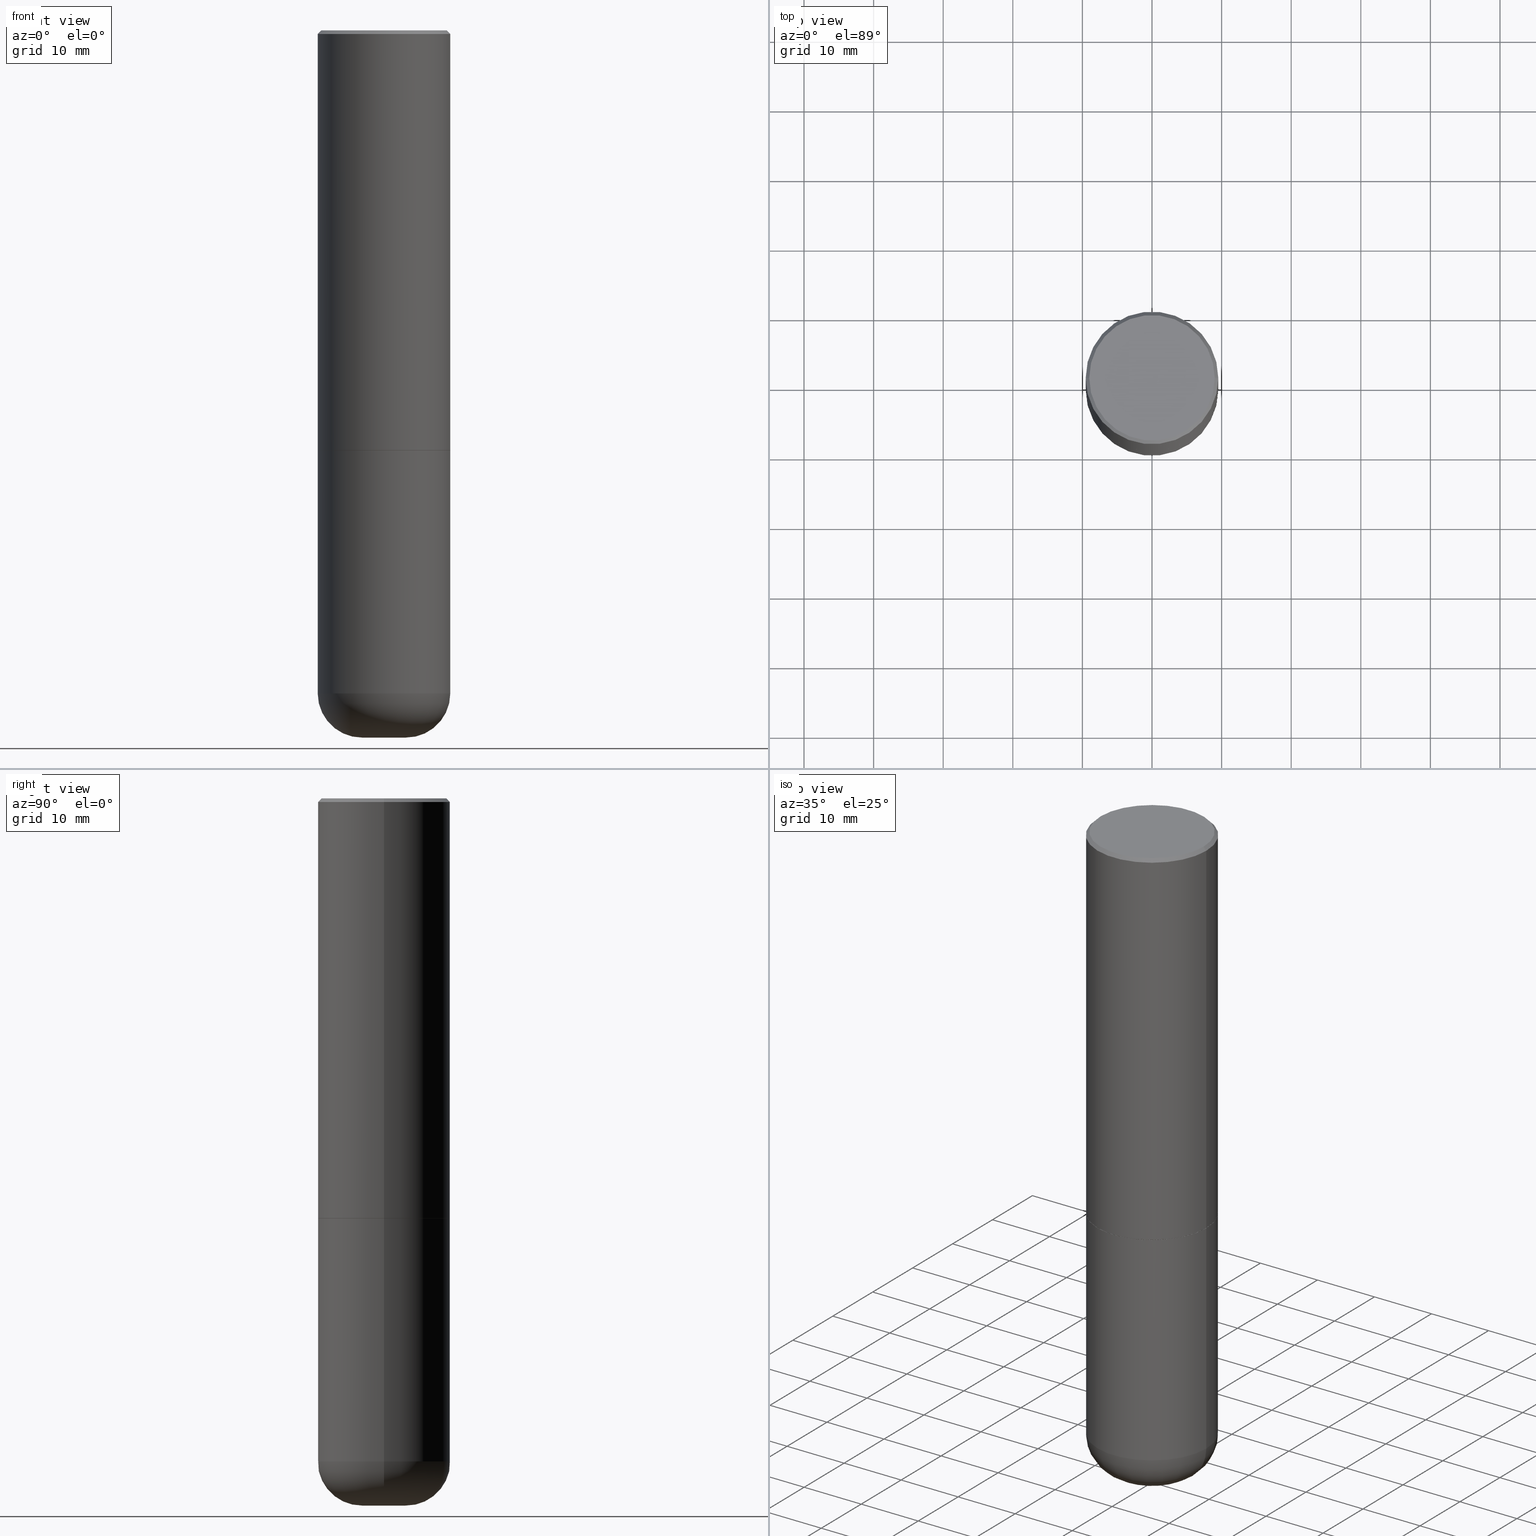
[diagram: canonical four-view strip — front | top / right | iso, engineering-drawing reading convention]
A machine part, canonical four-view strip (front | top / right | iso — engineering-drawing reading convention). The complete STEP part file that produces these views, byte-faithful:
ISO-10303-21;
HEADER;
FILE_DESCRIPTION (( 'STEP AP203' ),
    '1' );
FILE_NAME ('35724.STEP',
    '2022-11-02T20:53:01',
    ( '' ),
    ( '' ),
    'SwSTEP 2.0',
    'SolidWorks 2022',
    '' );
FILE_SCHEMA (( 'CONFIG_CONTROL_DESIGN' ));
ENDSEC;

DATA;
#1 = DIRECTION ( 'NONE',  ( 1.000000000000000000, -6.982962677686266711E-15, 4.876176775795935793E-29 ) ) ;
#2 = EDGE_LOOP ( 'NONE', ( #340, #156, #421, #313 ) ) ;
#3 = AXIS2_PLACEMENT_3D ( 'NONE', #293, #71, #446 ) ;
#4 = CONICAL_SURFACE ( 'NONE', #123, 0.3739999999999999991, 0.7853981633972775267 ) ;
#5 = DIRECTION ( 'NONE',  ( 1.000000000000000000, -6.982962677686257244E-15, 0.000000000000000000 ) ) ;
#6 = PRODUCT ( '35724', '35724', '', ( #248 ) ) ;
#7 = EDGE_LOOP ( 'NONE', ( #189, #295, #72, #87 ) ) ;
#8 = COORDINATED_UNIVERSAL_TIME_OFFSET ( 5, 0, .BEHIND. ) ;
#9 = ADVANCED_FACE ( 'NONE', ( #316 ), #466, .F. ) ;
#10 = DIRECTION ( 'NONE',  ( 1.000000000000000000, -6.982962677686257244E-15, 0.000000000000000000 ) ) ;
#11 = ORIENTED_EDGE ( 'NONE', *, *, #179, .F. ) ;
#12 = DIRECTION ( 'NONE',  ( 0.7071067811864267805, -2.468850131080992517E-15, 0.7071067811866682540 ) ) ;
#13 = DIRECTION ( 'NONE',  ( 1.000000000000000000, -6.982962677686266711E-15, 0.000000000000000000 ) ) ;
#14 = AXIS2_PLACEMENT_3D ( 'NONE', #361, #250, #480 ) ;
#15 = VECTOR ( 'NONE', #353, 39.37007874015748854 ) ;
#16 = CARTESIAN_POINT ( 'NONE',  ( 0.08282086612540810744, -1.453289902993237186E-14, -3.999650947105539256 ) ) ;
#17 = APPROVAL_DATE_TIME ( #206, #196 ) ;
#18 = DIRECTION ( 'NONE',  ( 0.7071067811865469066, -7.319954787623252890E-15, -0.7071067811865479058 ) ) ;
#19 = CARTESIAN_POINT ( 'NONE',  ( 0.000000000000000000, 0.000000000000000000, 0.000000000000000000 ) ) ;
#20 = CARTESIAN_POINT ( 'NONE',  ( -0.08282086612540810744, -1.338637162661792959E-14, -3.999650947105539256 ) ) ;
#21 = AXIS2_PLACEMENT_3D ( 'NONE', #255, #33, #135 ) ;
#22 = EDGE_CURVE ( 'NONE', #412, #43, #181, .T. ) ;
#23 = PERSON_AND_ORGANIZATION_ROLE ( 'creator' ) ;
#24 = APPROVAL_PERSON_ORGANIZATION ( #133, #205, #441 ) ;
#25 = LINE ( 'NONE', #167, #108 ) ;
#26 = EDGE_CURVE ( 'NONE', #414, #234, #168, .T. ) ;
#27 = PRODUCT_RELATED_PRODUCT_CATEGORY ( 'detail', '', ( #6 ) ) ;
#28 = DIRECTION ( 'NONE',  ( -2.445468806185136597E-29, 3.491481338843145583E-15, 1.000000000000000000 ) ) ;
#29 = UNCERTAINTY_MEASURE_WITH_UNIT (LENGTH_MEASURE( 1.000000000000000082E-05 ), #172, 'distance_accuracy_value', 'NONE');
#30 = LINE ( 'NONE', #175, #457 ) ;
#31 = CIRCLE ( 'NONE', #329, 0.3739999999999999991 ) ;
#32 = ADVANCED_FACE ( 'NONE', ( #125 ), #77, .F. ) ;
#33 = DIRECTION ( 'NONE',  ( -2.445468806185136597E-29, 3.491481338843145583E-15, 1.000000000000000000 ) ) ;
#34 = CARTESIAN_POINT ( 'NONE',  ( 9.781875224740545266E-29, -1.396592535537258075E-14, -3.999999999999999556 ) ) ;
#35 = ORIENTED_EDGE ( 'NONE', *, *, #472, .T. ) ;
#36 = VECTOR ( 'NONE', #252, 39.37007874015748143 ) ;
#37 = ORIENTED_EDGE ( 'NONE', *, *, #344, .F. ) ;
#38 = EDGE_LOOP ( 'NONE', ( #148, #105 ) ) ;
#39 = CARTESIAN_POINT ( 'NONE',  ( 0.000000000000000000, 0.000000000000000000, 0.000000000000000000 ) ) ;
#40 = VERTEX_POINT ( 'NONE', #445 ) ;
#41 = ADVANCED_FACE ( 'NONE', ( #373 ), #274, .T. ) ;
#42 = DIRECTION ( 'NONE',  ( -2.445468806185136597E-29, 3.491481338843145583E-15, 1.000000000000000000 ) ) ;
#43 = VERTEX_POINT ( 'NONE', #73 ) ;
#44 = AXIS2_PLACEMENT_3D ( 'NONE', #150, #184, #10 ) ;
#45 = AXIS2_PLACEMENT_3D ( 'NONE', #474, #42, #195 ) ;
#46 = CARTESIAN_POINT ( 'NONE',  ( 0.1228183661254082099, -1.480852051026551656E-14, -3.999999999999999556 ) ) ;
#47 = ORIENTED_EDGE ( 'NONE', *, *, #463, .F. ) ;
#48 = CC_DESIGN_PERSON_AND_ORGANIZATION_ASSIGNMENT ( #166, #310, ( #233 ) ) ;
#49 = CARTESIAN_POINT ( 'NONE',  ( 0.3739999999999999991, -1.090389622120713570E-14, -2.375000000000000000 ) ) ;
#50 = ORIENTED_EDGE ( 'NONE', *, *, #311, .F. ) ;
#51 =( LENGTH_UNIT ( ) NAMED_UNIT ( * ) SI_UNIT ( $, .METRE. ) );
#52 = DIRECTION ( 'NONE',  ( -0.7071067811864267805, 7.493145998869918709E-15, 0.7071067811866682540 ) ) ;
#53 = TOROIDAL_SURFACE ( 'NONE', #300, 0.1250000000000003053, 0.2500000000000001110 ) ;
#54 = PERSON_AND_ORGANIZATION ( #164, #458 ) ;
#55 = EDGE_CURVE ( 'NONE', #424, #461, #31, .T. ) ;
#56 = DIRECTION ( 'NONE',  ( -2.445468806185136877E-29, 3.491481338843145188E-15, 1.000000000000000000 ) ) ;
#57 = PERSON_AND_ORGANIZATION ( #164, #458 ) ;
#58 = DIRECTION ( 'NONE',  ( -0.9999619230641714207, 6.952228252019235511E-15, -0.008726535498355246501 ) ) ;
#59 = PERSON_AND_ORGANIZATION ( #164, #458 ) ;
#60 = DATE_AND_TIME ( #286, #257 ) ;
#61 = DIRECTION ( 'NONE',  ( -1.000000000000000000, 7.105427357601001859E-15, 0.000000000000000000 ) ) ;
#62 = CONICAL_SURFACE ( 'NONE', #3, 0.08282086612540810744, 1.535889741755012805 ) ;
#63 = COORDINATED_UNIVERSAL_TIME_OFFSET ( 5, 0, .BEHIND. ) ;
#64 = AXIS2_PLACEMENT_3D ( 'NONE', #388, #308, #460 ) ;
#65 = DIRECTION ( 'NONE',  ( -2.445468806185136597E-29, 3.491481338843145583E-15, 1.000000000000000000 ) ) ;
#66 = CARTESIAN_POINT ( 'NONE',  ( 0.08282086612540810744, -1.453289902993237186E-14, -3.999650947105539256 ) ) ;
#67 = CARTESIAN_POINT ( 'NONE',  ( 9.170531302183962062E-29, -1.309308825688951538E-14, -3.750009519233956645 ) ) ;
#68 = AXIS2_PLACEMENT_3D ( 'NONE', #202, #65, #365 ) ;
#69 = AXIS2_PLACEMENT_3D ( 'NONE', #79, #84, #1 ) ;
#70 = EDGE_LOOP ( 'NONE', ( #183, #333, #220, #269 ) ) ;
#71 = DIRECTION ( 'NONE',  ( 2.445468806185136597E-29, -3.491481338843145583E-15, -1.000000000000000000 ) ) ;
#72 = ORIENTED_EDGE ( 'NONE', *, *, #26, .F. ) ;
#73 = CARTESIAN_POINT ( 'NONE',  ( -0.3549999999999989275, 2.513866563967048758E-15, 4.268512490082953109E-18 ) ) ;
#74 = EDGE_CURVE ( 'NONE', #261, #237, #331, .T. ) ;
#75 = ORIENTED_EDGE ( 'NONE', *, *, #74, .T. ) ;
#76 = EDGE_CURVE ( 'NONE', #309, #262, #468, .T. ) ;
#77 = CONICAL_SURFACE ( 'NONE', #449, 0.1228183661254082099, 1.562069680534943661 ) ;
#78 = CARTESIAN_POINT ( 'NONE',  ( 5.805542945883513814E-29, -8.288776698413627111E-15, -2.373999999999999666 ) ) ;
#79 = CARTESIAN_POINT ( 'NONE',  ( 0.000000000000000000, 0.000000000000000000, 0.000000000000000000 ) ) ;
#80 = EDGE_LOOP ( 'NONE', ( #225, #419, #182, #374 ) ) ;
#81 = LINE ( 'NONE', #46, #15 ) ;
#82 = ORIENTED_EDGE ( 'NONE', *, *, #459, .F. ) ;
#83 = AXIS2_PLACEMENT_3D ( 'NONE', #173, #327, #483 ) ;
#84 = DIRECTION ( 'NONE',  ( -2.445468806185136597E-29, 3.491481338843145583E-15, 1.000000000000000000 ) ) ;
#85 = DIRECTION ( 'NONE',  ( 1.000000000000000000, -6.982962677686266711E-15, 4.876231632512002757E-29 ) ) ;
#86 = CARTESIAN_POINT ( 'NONE',  ( -0.3739999999999999991, -5.629539893661473027E-15, -2.375000000000000000 ) ) ;
#87 = ORIENTED_EDGE ( 'NONE', *, *, #235, .F. ) ;
#88 = CARTESIAN_POINT ( 'NONE',  ( -0.3749999999999991673, 2.548781377355480407E-15, -0.02000000000000022246 ) ) ;
#89 = COORDINATED_UNIVERSAL_TIME_OFFSET ( 5, 0, .BEHIND. ) ;
#90 = AXIS2_PLACEMENT_3D ( 'NONE', #120, #427, #471 ) ;
#91 = DIRECTION ( 'NONE',  ( 2.438088387897960049E-29, -3.491481338843145188E-15, -1.000000000000000000 ) ) ;
#92 = CIRCLE ( 'NONE', #101, 0.3739999999999999991 ) ;
#93 = APPROVAL_PERSON_ORGANIZATION ( #383, #349, #305 ) ;
#94 = PERSON_AND_ORGANIZATION_ROLE ( 'design_owner' ) ;
#95 = CARTESIAN_POINT ( 'NONE',  ( 0.1250000000000003053, -1.396595859160030030E-14, -3.750009519233956645 ) ) ;
#96 = CALENDAR_DATE ( 2022, 2, 11 ) ;
#97 = APPROVAL_DATE_TIME ( #226, #349 ) ;
#98 = CARTESIAN_POINT ( 'NONE',  ( 0.3749999999999991673, -2.642516375941182112E-15, -0.02000000000000022246 ) ) ;
#99 = FACE_OUTER_BOUND ( 'NONE', #429, .T. ) ;
#100 = EDGE_CURVE ( 'NONE', #343, #301, #355, .T. ) ;
#101 = AXIS2_PLACEMENT_3D ( 'NONE', #218, #199, #284 ) ;
#102 = CARTESIAN_POINT ( 'NONE',  ( 4.890937612370327459E-31, -6.982962677686369262E-17, -0.02000000000000022246 ) ) ;
#103 = EDGE_CURVE ( 'NONE', #301, #343, #416, .T. ) ;
#104 = DIRECTION ( 'NONE',  ( -0.7071067811865469066, 2.468850131082251144E-15, -0.7071067811865479058 ) ) ;
#105 = ORIENTED_EDGE ( 'NONE', *, *, #22, .T. ) ;
#106 = DIRECTION ( 'NONE',  ( -2.445468806185136597E-29, 3.491481338843145583E-15, 1.000000000000000000 ) ) ;
#107 = VECTOR ( 'NONE', #452, 39.37007874015748143 ) ;
#108 = VECTOR ( 'NONE', #52, 39.37007874015748143 ) ;
#109 = ORIENTED_EDGE ( 'NONE', *, *, #268, .F. ) ;
#110 = DIRECTION ( 'NONE',  ( -2.445468806185136597E-29, 3.491481338843145583E-15, 1.000000000000000000 ) ) ;
#111 = EDGE_LOOP ( 'NONE', ( #160, #464 ) ) ;
#112 = ORIENTED_EDGE ( 'NONE', *, *, #154, .F. ) ;
#113 = EDGE_CURVE ( 'NONE', #234, #414, #136, .T. ) ;
#114 = EDGE_LOOP ( 'NONE', ( #492, #351 ) ) ;
#115 = DIRECTION ( 'NONE',  ( -2.445468806185136597E-29, 3.491481338843145583E-15, 1.000000000000000000 ) ) ;
#116 = ORIENTED_EDGE ( 'NONE', *, *, #235, .T. ) ;
#117 = DIRECTION ( 'NONE',  ( 1.000000000000000000, -6.982962677686265133E-15, 4.876176775795935793E-29 ) ) ;
#118 = ORIENTED_EDGE ( 'NONE', *, *, #302, .F. ) ;
#119 = DIRECTION ( 'NONE',  ( -2.445468806185136597E-29, 3.491481338843145583E-15, 1.000000000000000000 ) ) ;
#120 = CARTESIAN_POINT ( 'NONE',  ( 5.807988414689700538E-29, -8.292268179752471696E-15, -2.375000000000000000 ) ) ;
#121 = PERSON_AND_ORGANIZATION_ROLE ( 'classification_officer' ) ;
#122 = AXIS2_PLACEMENT_3D ( 'NONE', #346, #378, #465 ) ;
#123 = AXIS2_PLACEMENT_3D ( 'NONE', #193, #230, #385 ) ;
#124 = CARTESIAN_POINT ( 'NONE',  ( -0.3750000000000000555, -1.514767903494864183E-15, -2.373999999999999666 ) ) ;
#125 = FACE_OUTER_BOUND ( 'NONE', #266, .T. ) ;
#126 = CARTESIAN_POINT ( 'NONE',  ( 0.3749999999999999445, -2.618611004132349622E-15, 1.828566290923475642E-29 ) ) ;
#127 = CARTESIAN_POINT ( 'NONE',  ( -0.3749999999999995559, 2.664535259100372542E-15, -1.844600658845587356E-29 ) ) ;
#128 = LENGTH_MEASURE_WITH_UNIT ( LENGTH_MEASURE( 0.02539999999999999897 ), #51 );
#129 = FACE_OUTER_BOUND ( 'NONE', #2, .T. ) ;
#130 = AXIS2_PLACEMENT_3D ( 'NONE', #197, #354, #13 ) ;
#131 = SECURITY_CLASSIFICATION ( '', '', #398 ) ;
#132 = CARTESIAN_POINT ( 'NONE',  ( 0.3749999999999999445, -1.571169926102186224E-14, -3.750009519233956645 ) ) ;
#133 = PERSON_AND_ORGANIZATION ( #164, #458 ) ;
#134 = CARTESIAN_POINT ( 'NONE',  ( 9.170531302183962062E-29, -1.309308825688951538E-14, -3.750009519233956645 ) ) ;
#135 = DIRECTION ( 'NONE',  ( 1.000000000000000000, -6.982962677686266711E-15, 0.000000000000000000 ) ) ;
#136 = CIRCLE ( 'NONE', #21, 0.3750000000000000555 ) ;
#137 = DIRECTION ( 'NONE',  ( 0.9993908270190957621, -6.978169709227531233E-15, -0.03489949670249818670 ) ) ;
#138 = ORIENTED_EDGE ( 'NONE', *, *, #326, .F. ) ;
#139 = DIRECTION ( 'NONE',  ( 1.000000000000000000, -6.982962677686266711E-15, 0.000000000000000000 ) ) ;
#140 = EDGE_CURVE ( 'NONE', #43, #343, #30, .T. ) ;
#141 = ORIENTED_EDGE ( 'NONE', *, *, #179, .T. ) ;
#142 = DIRECTION ( 'NONE',  ( -2.445468806185136597E-29, 3.491481338843145583E-15, 1.000000000000000000 ) ) ;
#143 = AXIS2_PLACEMENT_3D ( 'NONE', #209, #91, #322 ) ;
#144 = AXIS2_PLACEMENT_3D ( 'NONE', #390, #462, #423 ) ;
#145 = ADVANCED_FACE ( 'NONE', ( #334 ), #62, .F. ) ;
#146 = ORIENTED_EDGE ( 'NONE', *, *, #417, .F. ) ;
#147 = ORIENTED_EDGE ( 'NONE', *, *, #192, .T. ) ;
#148 = ORIENTED_EDGE ( 'NONE', *, *, #326, .T. ) ;
#149 = ADVANCED_FACE ( 'NONE', ( #176 ), #263, .F. ) ;
#150 = CARTESIAN_POINT ( 'NONE',  ( 9.781021626775434250E-29, -1.396470664370530441E-14, -3.999650947105539256 ) ) ;
#151 = AXIS2_PLACEMENT_3D ( 'NONE', #134, #245, #430 ) ;
#152 = ORIENTED_EDGE ( 'NONE', *, *, #76, .T. ) ;
#153 = PERSON_AND_ORGANIZATION ( #164, #458 ) ;
#154 = EDGE_CURVE ( 'NONE', #40, #234, #447, .T. ) ;
#155 = DIRECTION ( 'NONE',  ( 2.445468806185136597E-29, -3.491481338843145583E-15, -1.000000000000000000 ) ) ;
#156 = ORIENTED_EDGE ( 'NONE', *, *, #251, .T. ) ;
#157 = CARTESIAN_POINT ( 'NONE',  ( 4.890937612370327459E-31, -6.982962677686369262E-17, -0.02000000000000022246 ) ) ;
#158 = ORIENTED_EDGE ( 'NONE', *, *, #406, .T. ) ;
#159 = LINE ( 'NONE', #187, #222 ) ;
#160 = ORIENTED_EDGE ( 'NONE', *, *, #201, .F. ) ;
#161 = CIRCLE ( 'NONE', #151, 0.3749999999999999445 ) ;
#162 = CC_DESIGN_PERSON_AND_ORGANIZATION_ASSIGNMENT ( #54, #358, ( #233 ) ) ;
#163 = CARTESIAN_POINT ( 'NONE',  ( 9.781021626775434250E-29, -1.396470664370530441E-14, -3.999650947105539256 ) ) ;
#164 = PERSON ( 'UNSPECIFIED', 'UNSPECIFIED', 'UNSPECIFIED', ('UNSPECIFIED'), ('UNSPECIFIED'), ('UNSPECIFIED') ) ;
#165 = DIRECTION ( 'NONE',  ( 1.000000000000000000, -6.982962677686268288E-15, 0.000000000000000000 ) ) ;
#166 = PERSON_AND_ORGANIZATION ( #164, #458 ) ;
#167 = CARTESIAN_POINT ( 'NONE',  ( -0.3739999999999999991, -5.634838348009696218E-15, -2.375000000000000000 ) ) ;
#168 = CIRCLE ( 'NONE', #130, 0.3750000000000000555 ) ;
#169 = LINE ( 'NONE', #476, #345 ) ;
#170 = AXIS2_PLACEMENT_3D ( 'NONE', #19, #477, #203 ) ;
#171 = AXIS2_PLACEMENT_3D ( 'NONE', #78, #314, #236 ) ;
#172 =( CONVERSION_BASED_UNIT ( 'INCH', #128 ) LENGTH_UNIT ( ) NAMED_UNIT ( #415 ) );
#173 = CARTESIAN_POINT ( 'NONE',  ( 0.000000000000000000, 0.000000000000000000, 0.000000000000000000 ) ) ;
#174 = DIRECTION ( 'NONE',  ( 7.105427357601001859E-15, 1.000000000000000000, -3.491481338843145583E-15 ) ) ;
#175 = CARTESIAN_POINT ( 'NONE',  ( -0.3749999999999991673, 2.548781377355480407E-15, -0.02000000000000022246 ) ) ;
#176 = FACE_OUTER_BOUND ( 'NONE', #70, .T. ) ;
#177 = EDGE_LOOP ( 'NONE', ( #112, #387, #116, #335 ) ) ;
#178 = CARTESIAN_POINT ( 'NONE',  ( 4.890937612370327459E-31, -6.982962677686369262E-17, -0.02000000000000022246 ) ) ;
#179 = EDGE_CURVE ( 'NONE', #262, #309, #307, .T. ) ;
#180 = ORIENTED_EDGE ( 'NONE', *, *, #22, .F. ) ;
#181 = CIRCLE ( 'NONE', #318, 0.3549999999999989275 ) ;
#182 = ORIENTED_EDGE ( 'NONE', *, *, #103, .F. ) ;
#183 = ORIENTED_EDGE ( 'NONE', *, *, #472, .F. ) ;
#184 = DIRECTION ( 'NONE',  ( -2.445468806185136597E-29, 3.491481338843145583E-15, 1.000000000000000000 ) ) ;
#185 = ORIENTED_EDGE ( 'NONE', *, *, #384, .T. ) ;
#186 = SHAPE_DEFINITION_REPRESENTATION ( #277, #404 ) ;
#187 = CARTESIAN_POINT ( 'NONE',  ( -0.08282086612540810744, -1.338637162661792959E-14, -3.999650947105539256 ) ) ;
#188 = AXIS2_PLACEMENT_3D ( 'NONE', #39, #115, #117 ) ;
#189 = ORIENTED_EDGE ( 'NONE', *, *, #268, .T. ) ;
#190 = APPROVAL_STATUS ( 'not_yet_approved' ) ;
#191 = LOCAL_TIME ( 16, 53, 1.000000000000000000, #229 ) ;
#192 = EDGE_CURVE ( 'NONE', #454, #301, #260, .T. ) ;
#193 = CARTESIAN_POINT ( 'NONE',  ( 5.807988414689700538E-29, -8.292268179752471696E-15, -2.375000000000000000 ) ) ;
#194 = EDGE_LOOP ( 'NONE', ( #223, #303, #146 ) ) ;
#195 = DIRECTION ( 'NONE',  ( 1.000000000000000000, -6.982962677686263555E-15, 0.000000000000000000 ) ) ;
#196 = APPROVAL ( #244, 'UNSPECIFIED' ) ;
#197 = CARTESIAN_POINT ( 'NONE',  ( 5.807988414689699417E-29, -8.292268179752470118E-15, -2.375000000000000000 ) ) ;
#198 = CIRCLE ( 'NONE', #444, 0.2500000000000000555 ) ;
#199 = DIRECTION ( 'NONE',  ( -2.445468806185136597E-29, 3.491481338843145583E-15, 1.000000000000000000 ) ) ;
#200 = DATE_TIME_ROLE ( 'creation_date' ) ;
#201 = EDGE_CURVE ( 'NONE', #461, #424, #92, .T. ) ;
#202 = CARTESIAN_POINT ( 'NONE',  ( -1.043851414335219820E-46, 1.490343170380447200E-32, 4.268512490100411279E-18 ) ) ;
#203 = DIRECTION ( 'NONE',  ( 1.000000000000000000, 0.000000000000000000, 0.000000000000000000 ) ) ;
#204 = PLANE ( 'NONE',  #14 ) ;
#205 = APPROVAL ( #360, 'UNSPECIFIED' ) ;
#206 = DATE_AND_TIME ( #96, #214 ) ;
#207 = CYLINDRICAL_SURFACE ( 'NONE', #83, 0.3749999999999999445 ) ;
#208 = EDGE_CURVE ( 'NONE', #309, #375, #198, .T. ) ;
#209 = CARTESIAN_POINT ( 'NONE',  ( 2.478951750578617109E-15, 0.3549999999999989275, -1.237341619044262680E-15 ) ) ;
#210 = CC_DESIGN_PERSON_AND_ORGANIZATION_ASSIGNMENT ( #281, #94, ( #6 ) ) ;
#211 = DIRECTION ( 'NONE',  ( -2.445468806185136597E-29, 3.491481338843145583E-15, 1.000000000000000000 ) ) ;
#212 = CARTESIAN_POINT ( 'NONE',  ( 9.781875224740545266E-29, -1.396592535537258075E-14, -3.999999999999999556 ) ) ;
#213 = VECTOR ( 'NONE', #56, 39.37007874015748143 ) ;
#214 = LOCAL_TIME ( 16, 53, 1.000000000000000000, #438 ) ;
#215 = VERTEX_POINT ( 'NONE', #20 ) ;
#216 = CARTESIAN_POINT ( 'NONE',  ( 9.781875224740545266E-29, -1.396592535537258075E-14, -3.999999999999999556 ) ) ;
#217 = EDGE_LOOP ( 'NONE', ( #47, #75, #405 ) ) ;
#218 = CARTESIAN_POINT ( 'NONE',  ( 5.807988414689700538E-29, -8.292268179752471696E-15, -2.375000000000000000 ) ) ;
#219 = CC_DESIGN_DATE_AND_TIME_ASSIGNMENT ( #60, #270, ( #131 ) ) ;
#220 = ORIENTED_EDGE ( 'NONE', *, *, #344, .T. ) ;
#221 = VECTOR ( 'NONE', #18, 39.37007874015748854 ) ;
#222 = VECTOR ( 'NONE', #264, 39.37007874015748854 ) ;
#223 = ORIENTED_EDGE ( 'NONE', *, *, #74, .F. ) ;
#224 = FACE_OUTER_BOUND ( 'NONE', #272, .T. ) ;
#225 = ORIENTED_EDGE ( 'NONE', *, *, #442, .T. ) ;
#226 = DATE_AND_TIME ( #352, #191 ) ;
#227 = CARTESIAN_POINT ( 'NONE',  ( 0.3750000000000000555, -1.090738770254597870E-14, -2.373999999999999666 ) ) ;
#228 = ORIENTED_EDGE ( 'NONE', *, *, #140, .F. ) ;
#229 = COORDINATED_UNIVERSAL_TIME_OFFSET ( 5, 0, .BEHIND. ) ;
#230 = DIRECTION ( 'NONE',  ( -2.445468806185136597E-29, 3.491481338843145583E-15, 1.000000000000000000 ) ) ;
#231 = APPLICATION_CONTEXT ( 'configuration controlled 3d designs of mechanical parts and assemblies' ) ;
#232 = AXIS2_PLACEMENT_3D ( 'NONE', #34, #110, #371 ) ;
#233 = PRODUCT_DEFINITION_FORMATION_WITH_SPECIFIED_SOURCE ( 'ANY', '', #6, .NOT_KNOWN. ) ;
#234 = VERTEX_POINT ( 'NONE', #402 ) ;
#235 = EDGE_CURVE ( 'NONE', #375, #414, #397, .T. ) ;
#236 = DIRECTION ( 'NONE',  ( 1.000000000000000000, -6.982962677686266711E-15, 0.000000000000000000 ) ) ;
#237 = VERTEX_POINT ( 'NONE', #16 ) ;
#238 = CARTESIAN_POINT ( 'NONE',  ( 0.3750000000000000555, -1.091087918388482013E-14, -2.375000000000000000 ) ) ;
#239 = DATE_AND_TIME ( #288, #242 ) ;
#240 = ADVANCED_FACE ( 'NONE', ( #129 ), #393, .T. ) ;
#241 = VECTOR ( 'NONE', #12, 39.37007874015748143 ) ;
#242 = LOCAL_TIME ( 16, 53, 1.000000000000000000, #89 ) ;
#243 = DIRECTION ( 'NONE',  ( -2.445468806185136597E-29, 3.491481338843145583E-15, 1.000000000000000000 ) ) ;
#244 = APPROVAL_STATUS ( 'not_yet_approved' ) ;
#245 = DIRECTION ( 'NONE',  ( -2.445468806185136597E-29, 3.491481338843145583E-15, 1.000000000000000000 ) ) ;
#246 = FACE_OUTER_BOUND ( 'NONE', #7, .T. ) ;
#247 = DESIGN_CONTEXT ( 'detailed design', #258, 'design' ) ;
#248 = MECHANICAL_CONTEXT ( 'NONE', #231, 'mechanical' ) ;
#249 = AXIS2_PLACEMENT_3D ( 'NONE', #486, #296, #299 ) ;
#250 = DIRECTION ( 'NONE',  ( 2.438088387897960049E-29, -3.491481338843145188E-15, -1.000000000000000000 ) ) ;
#251 = EDGE_CURVE ( 'NONE', #424, #490, #25, .T. ) ;
#252 = DIRECTION ( 'NONE',  ( -2.445468806185136877E-29, 3.491481338843145188E-15, 1.000000000000000000 ) ) ;
#253 = DIRECTION ( 'NONE',  ( 2.445468806185136597E-29, -3.491481338843145583E-15, -1.000000000000000000 ) ) ;
#254 = ORIENTED_EDGE ( 'NONE', *, *, #103, .T. ) ;
#255 = CARTESIAN_POINT ( 'NONE',  ( 5.807988414689699417E-29, -8.292268179752470118E-15, -2.375000000000000000 ) ) ;
#256 = CIRCLE ( 'NONE', #44, 0.08282086612540810744 ) ;
#257 = LOCAL_TIME ( 16, 53, 1.000000000000000000, #8 ) ;
#258 = APPLICATION_CONTEXT ( 'configuration controlled 3d designs of mechanical parts and assemblies' ) ;
#259 = EDGE_LOOP ( 'NONE', ( #152, #379, #109, #298 ) ) ;
#260 = LINE ( 'NONE', #411, #36 ) ;
#261 = VERTEX_POINT ( 'NONE', #473 ) ;
#262 = VERTEX_POINT ( 'NONE', #280 ) ;
#263 = CONICAL_SURFACE ( 'NONE', #249, 0.1228183661254082099, 1.562069680534943661 ) ;
#264 = DIRECTION ( 'NONE',  ( -0.9993908270190957621, 6.856857904024566726E-15, -0.03489949670249818670 ) ) ;
#265 = CIRCLE ( 'NONE', #45, 0.3749999999999999445 ) ;
#266 = EDGE_LOOP ( 'NONE', ( #158, #35, #11, #37 ) ) ;
#267 = FACE_OUTER_BOUND ( 'NONE', #80, .T. ) ;
#268 = EDGE_CURVE ( 'NONE', #375, #40, #161, .T. ) ;
#269 = ORIENTED_EDGE ( 'NONE', *, *, #76, .F. ) ;
#270 = DATE_TIME_ROLE ( 'classification_date' ) ;
#271 = FACE_OUTER_BOUND ( 'NONE', #177, .T. ) ;
#272 = EDGE_LOOP ( 'NONE', ( #372, #304, #185, #82 ) ) ;
#273 = CYLINDRICAL_SURFACE ( 'NONE', #188, 0.3749999999999995559 ) ;
#274 = TOROIDAL_SURFACE ( 'NONE', #478, 0.1250000000000003053, 0.2500000000000001110 ) ;
#275 = CC_DESIGN_APPROVAL ( #205, ( #233 ) ) ;
#276 = CARTESIAN_POINT ( 'NONE',  ( -1.043851414335219820E-46, 1.490343170380447200E-32, 4.268512490100411279E-18 ) ) ;
#277 = PRODUCT_DEFINITION_SHAPE ( 'NONE', 'NONE',  #422 ) ;
#278 = EDGE_LOOP ( 'NONE', ( #180, #450, #254, #228 ) ) ;
#279 = FACE_OUTER_BOUND ( 'NONE', #114, .T. ) ;
#280 = CARTESIAN_POINT ( 'NONE',  ( -0.1228183661254082099, -1.176090068723919405E-14, -3.999999999999999556 ) ) ;
#281 = PERSON_AND_ORGANIZATION ( #164, #458 ) ;
#282 = VECTOR ( 'NONE', #367, 39.37007874015748143 ) ;
#283 = AXIS2_PLACEMENT_3D ( 'NONE', #157, #317, #470 ) ;
#284 = DIRECTION ( 'NONE',  ( 1.000000000000000000, -6.982962677686268288E-15, 0.000000000000000000 ) ) ;
#285 = APPLICATION_PROTOCOL_DEFINITION ( 'international standard', 'config_control_design', 1994, #258 ) ;
#286 = CALENDAR_DATE ( 2022, 2, 11 ) ;
#287 = LINE ( 'NONE', #127, #213 ) ;
#288 = CALENDAR_DATE ( 2022, 2, 11 ) ;
#289 = LINE ( 'NONE', #443, #241 ) ;
#290 = AXIS2_PLACEMENT_3D ( 'NONE', #216, #336, #488 ) ;
#291 = CARTESIAN_POINT ( 'NONE',  ( 5.807988414689700538E-29, -8.292268179752471696E-15, -2.375000000000000000 ) ) ;
#292 = ADVANCED_FACE ( 'NONE', ( #440 ), #432, .F. ) ;
#293 = CARTESIAN_POINT ( 'NONE',  ( 9.781021626775434250E-29, -1.396470664370530441E-14, -3.999650947105539256 ) ) ;
#294 = ADVANCED_FACE ( 'NONE', ( #99 ), #53, .T. ) ;
#295 = ORIENTED_EDGE ( 'NONE', *, *, #154, .T. ) ;
#296 = DIRECTION ( 'NONE',  ( 2.445468806185136597E-29, -3.491481338843145583E-15, -1.000000000000000000 ) ) ;
#297 = CC_DESIGN_DATE_AND_TIME_ASSIGNMENT ( #433, #200, ( #422 ) ) ;
#298 = ORIENTED_EDGE ( 'NONE', *, *, #208, .F. ) ;
#299 = DIRECTION ( 'NONE',  ( -1.000000000000000000, 6.982962677686260400E-15, 0.000000000000000000 ) ) ;
#300 = AXIS2_PLACEMENT_3D ( 'NONE', #325, #243, #391 ) ;
#301 = VERTEX_POINT ( 'NONE', #475 ) ;
#302 = EDGE_CURVE ( 'NONE', #262, #40, #407, .T. ) ;
#303 = ORIENTED_EDGE ( 'NONE', *, *, #463, .T. ) ;
#304 = ORIENTED_EDGE ( 'NONE', *, *, #55, .T. ) ;
#305 = APPROVAL_ROLE ( '' ) ;
#306 = CLOSED_SHELL ( 'NONE', ( #32, #41, #380, #145, #435, #366, #439, #294, #149 ) ) ;
#307 = CIRCLE ( 'NONE', #290, 0.1228183661254082099 ) ;
#308 = DIRECTION ( 'NONE',  ( -2.445468806185136597E-29, 3.491481338843145583E-15, 1.000000000000000000 ) ) ;
#309 = VERTEX_POINT ( 'NONE', #396 ) ;
#310 = PERSON_AND_ORGANIZATION_ROLE ( 'design_supplier' ) ;
#311 = EDGE_CURVE ( 'NONE', #490, #343, #287, .T. ) ;
#312 = CYLINDRICAL_SURFACE ( 'NONE', #144, 0.3749999999999995559 ) ;
#313 = ORIENTED_EDGE ( 'NONE', *, *, #384, .F. ) ;
#314 = DIRECTION ( 'NONE',  ( -2.445468806185136597E-29, 3.491481338843145583E-15, 1.000000000000000000 ) ) ;
#315 = MANIFOLD_SOLID_BREP ( 'Body-Move/Copy2[2]', #456 ) ;
#316 = FACE_OUTER_BOUND ( 'NONE', #111, .T. ) ;
#317 = DIRECTION ( 'NONE',  ( 2.445468806185136597E-29, -3.491481338843145583E-15, -1.000000000000000000 ) ) ;
#318 = AXIS2_PLACEMENT_3D ( 'NONE', #276, #389, #85 ) ;
#319 = ORIENTED_EDGE ( 'NONE', *, *, #100, .F. ) ;
#320 = MANIFOLD_SOLID_BREP ( 'Body-Move/Copy2[1]', #306 ) ;
#321 = FACE_OUTER_BOUND ( 'NONE', #194, .T. ) ;
#322 = DIRECTION ( 'NONE',  ( -1.000000000000000000, 6.982962677686265922E-15, -4.876176775795935793E-29 ) ) ;
#323 =( NAMED_UNIT ( * ) PLANE_ANGLE_UNIT ( ) SI_UNIT ( $, .RADIAN. ) );
#324 = CARTESIAN_POINT ( 'NONE',  ( -0.1250000000000003053, -1.220490983718938699E-14, -3.750009519233956645 ) ) ;
#325 = CARTESIAN_POINT ( 'NONE',  ( 9.170531302183962062E-29, -1.309308825688951538E-14, -3.750009519233956645 ) ) ;
#326 = EDGE_CURVE ( 'NONE', #43, #412, #363, .T. ) ;
#327 = DIRECTION ( 'NONE',  ( -2.445468806185136597E-29, 3.491481338843145583E-15, 1.000000000000000000 ) ) ;
#328 = DIRECTION ( 'NONE',  ( 1.000000000000000000, -6.982962677686268288E-15, 0.000000000000000000 ) ) ;
#329 = AXIS2_PLACEMENT_3D ( 'NONE', #291, #485, #328 ) ;
#330 = EDGE_CURVE ( 'NONE', #412, #301, #359, .T. ) ;
#331 = LINE ( 'NONE', #66, #425 ) ;
#332 = LOCAL_TIME ( 16, 53, 1.000000000000000000, #63 ) ;
#333 = ORIENTED_EDGE ( 'NONE', *, *, #417, .T. ) ;
#334 = FACE_OUTER_BOUND ( 'NONE', #217, .T. ) ;
#335 = ORIENTED_EDGE ( 'NONE', *, *, #113, .F. ) ;
#336 = DIRECTION ( 'NONE',  ( -2.445468806185136597E-29, 3.491481338843145583E-15, 1.000000000000000000 ) ) ;
#337 = ORIENTED_EDGE ( 'NONE', *, *, #459, .T. ) ;
#338 = AXIS2_PLACEMENT_3D ( 'NONE', #102, #106, #403 ) ;
#339 =( GEOMETRIC_REPRESENTATION_CONTEXT ( 3 ) GLOBAL_UNCERTAINTY_ASSIGNED_CONTEXT ( ( #29 ) ) GLOBAL_UNIT_ASSIGNED_CONTEXT ( ( #172, #323, #362 ) ) REPRESENTATION_CONTEXT ( 'NONE', 'WORKASPACE' ) );
#340 = ORIENTED_EDGE ( 'NONE', *, *, #201, .T. ) ;
#341 = ORIENTED_EDGE ( 'NONE', *, *, #140, .T. ) ;
#342 = CARTESIAN_POINT ( 'NONE',  ( 0.3549999999999989275, -2.538996582575033948E-15, 4.268512490117958041E-18 ) ) ;
#343 = VERTEX_POINT ( 'NONE', #88 ) ;
#344 = EDGE_CURVE ( 'NONE', #215, #262, #169, .T. ) ;
#345 = VECTOR ( 'NONE', #58, 39.37007874015748854 ) ;
#346 = CARTESIAN_POINT ( 'NONE',  ( 4.890937612370327459E-31, -6.982962677686369262E-17, -0.02000000000000022246 ) ) ;
#347 = CIRCLE ( 'NONE', #171, 0.3750000000000000555 ) ;
#348 = ORIENTED_EDGE ( 'NONE', *, *, #330, .F. ) ;
#349 = APPROVAL ( #190, 'UNSPECIFIED' ) ;
#350 = FACE_OUTER_BOUND ( 'NONE', #278, .T. ) ;
#351 = ORIENTED_EDGE ( 'NONE', *, *, #113, .T. ) ;
#352 = CALENDAR_DATE ( 2022, 2, 11 ) ;
#353 = DIRECTION ( 'NONE',  ( 0.9999619230641714207, -6.890705306874777996E-15, -0.008726535498355246501 ) ) ;
#354 = DIRECTION ( 'NONE',  ( -2.445468806185136597E-29, 3.491481338843145583E-15, 1.000000000000000000 ) ) ;
#355 = CIRCLE ( 'NONE', #376, 0.3749999999999991673 ) ;
#356 = CC_DESIGN_PERSON_AND_ORGANIZATION_ASSIGNMENT ( #57, #23, ( #422 ) ) ;
#357 = DIRECTION ( 'NONE',  ( 1.000000000000000000, -6.982962677686269077E-15, 0.000000000000000000 ) ) ;
#358 = PERSON_AND_ORGANIZATION_ROLE ( 'creator' ) ;
#359 = LINE ( 'NONE', #98, #221 ) ;
#360 = APPROVAL_STATUS ( 'not_yet_approved' ) ;
#361 = CARTESIAN_POINT ( 'NONE',  ( 2.618611004132408392E-15, 0.3749999999999917843, -2.375000000000001332 ) ) ;
#362 =( NAMED_UNIT ( * ) SI_UNIT ( $, .STERADIAN. ) SOLID_ANGLE_UNIT ( ) );
#363 = CIRCLE ( 'NONE', #68, 0.3549999999999989275 ) ;
#364 = CC_DESIGN_APPROVAL ( #349, ( #131 ) ) ;
#365 = DIRECTION ( 'NONE',  ( 1.000000000000000000, -6.982962677686266711E-15, 4.876231632512002757E-29 ) ) ;
#366 = ADVANCED_FACE ( 'NONE', ( #279 ), #204, .F. ) ;
#367 = DIRECTION ( 'NONE',  ( -2.445468806185136877E-29, 3.491481338843145188E-15, 1.000000000000000000 ) ) ;
#368 = DIRECTION ( 'NONE',  ( 1.000000000000000000, -6.982962677686266711E-15, 4.883557194083113462E-29 ) ) ;
#369 = AXIS2_PLACEMENT_3D ( 'NONE', #437, #28, #165 ) ;
#370 = CC_DESIGN_PERSON_AND_ORGANIZATION_ASSIGNMENT ( #153, #121, ( #131 ) ) ;
#371 = DIRECTION ( 'NONE',  ( 1.000000000000000000, -6.982962677686260400E-15, 0.000000000000000000 ) ) ;
#372 = ORIENTED_EDGE ( 'NONE', *, *, #251, .F. ) ;
#373 = FACE_OUTER_BOUND ( 'NONE', #259, .T. ) ;
#374 = ORIENTED_EDGE ( 'NONE', *, *, #192, .F. ) ;
#375 = VERTEX_POINT ( 'NONE', #132 ) ;
#376 = AXIS2_PLACEMENT_3D ( 'NONE', #178, #211, #139 ) ;
#377 = ORIENTED_EDGE ( 'NONE', *, *, #100, .T. ) ;
#378 = DIRECTION ( 'NONE',  ( 2.445468806185136597E-29, -3.491481338843145583E-15, -1.000000000000000000 ) ) ;
#379 = ORIENTED_EDGE ( 'NONE', *, *, #302, .T. ) ;
#380 = ADVANCED_FACE ( 'NONE', ( #246 ), #207, .T. ) ;
#381 = DIRECTION ( 'NONE',  ( -1.000000000000000000, 6.982962677686257244E-15, 0.000000000000000000 ) ) ;
#382 = ORIENTED_EDGE ( 'NONE', *, *, #448, .F. ) ;
#383 = PERSON_AND_ORGANIZATION ( #164, #458 ) ;
#384 = EDGE_CURVE ( 'NONE', #461, #454, #289, .T. ) ;
#385 = DIRECTION ( 'NONE',  ( 1.000000000000000000, -6.982962677686268288E-15, 0.000000000000000000 ) ) ;
#386 = CIRCLE ( 'NONE', #469, 0.08282086612540810744 ) ;
#387 = ORIENTED_EDGE ( 'NONE', *, *, #448, .T. ) ;
#388 = CARTESIAN_POINT ( 'NONE',  ( 5.805542945883513814E-29, -8.288776698413627111E-15, -2.373999999999999666 ) ) ;
#389 = DIRECTION ( 'NONE',  ( -2.445468806185136597E-29, 3.491481338843145583E-15, 1.000000000000000000 ) ) ;
#390 = CARTESIAN_POINT ( 'NONE',  ( 0.000000000000000000, 0.000000000000000000, 0.000000000000000000 ) ) ;
#391 = DIRECTION ( 'NONE',  ( 1.000000000000000000, -6.982962677686266711E-15, 4.883557194083113462E-29 ) ) ;
#392 = APPROVAL_DATE_TIME ( #239, #205 ) ;
#393 = CONICAL_SURFACE ( 'NONE', #369, 0.3739999999999999991, 0.7853981633972775267 ) ;
#394 = CC_DESIGN_SECURITY_CLASSIFICATION ( #131, ( #233 ) ) ;
#395 = ADVANCED_FACE ( 'NONE', ( #267 ), #273, .T. ) ;
#396 = CARTESIAN_POINT ( 'NONE',  ( 0.1228183661254082099, -1.482356142216071167E-14, -3.999999999999999556 ) ) ;
#397 = LINE ( 'NONE', #126, #282 ) ;
#398 = SECURITY_CLASSIFICATION_LEVEL ( 'unclassified' ) ;
#399 = DIRECTION ( 'NONE',  ( -6.982962677686266711E-15, -1.000000000000000000, 3.491481338843145583E-15 ) ) ;
#400 = APPROVAL_ROLE ( '' ) ;
#401 = APPROVAL_PERSON_ORGANIZATION ( #59, #196, #400 ) ;
#402 = CARTESIAN_POINT ( 'NONE',  ( -0.3750000000000000555, -8.028142959220617840E-15, -2.375000000000000000 ) ) ;
#403 = DIRECTION ( 'NONE',  ( 1.000000000000000000, -6.982962677686266711E-15, 0.000000000000000000 ) ) ;
#404 = ADVANCED_BREP_SHAPE_REPRESENTATION ( '35724', ( #320, #315, #170 ), #339 ) ;
#405 = ORIENTED_EDGE ( 'NONE', *, *, #406, .F. ) ;
#406 = EDGE_CURVE ( 'NONE', #215, #237, #256, .T. ) ;
#407 = CIRCLE ( 'NONE', #434, 0.2500000000000000555 ) ;
#408 = CARTESIAN_POINT ( 'NONE',  ( -0.3749999999999999445, 2.664535259100375303E-15, -1.844600658845589318E-29 ) ) ;
#409 = CONICAL_SURFACE ( 'NONE', #283, 0.3749999999999991673, 0.7853981633974476129 ) ;
#410 = ADVANCED_FACE ( 'NONE', ( #428 ), #489, .T. ) ;
#411 = CARTESIAN_POINT ( 'NONE',  ( 0.3749999999999995559, -2.618611004132346467E-15, 1.828566290923473680E-29 ) ) ;
#412 = VERTEX_POINT ( 'NONE', #342 ) ;
#413 = ADVANCED_FACE ( 'NONE', ( #224 ), #4, .T. ) ;
#414 = VERTEX_POINT ( 'NONE', #238 ) ;
#415 = DIMENSIONAL_EXPONENTS ( 1.000000000000000000, 0.000000000000000000, 0.000000000000000000, 0.000000000000000000, 0.000000000000000000, 0.000000000000000000, 0.000000000000000000 ) ;
#416 = CIRCLE ( 'NONE', #338, 0.3749999999999991673 ) ;
#417 = EDGE_CURVE ( 'NONE', #237, #215, #386, .T. ) ;
#418 = FACE_OUTER_BOUND ( 'NONE', #487, .T. ) ;
#419 = ORIENTED_EDGE ( 'NONE', *, *, #311, .T. ) ;
#420 = CYLINDRICAL_SURFACE ( 'NONE', #69, 0.3749999999999999445 ) ;
#421 = ORIENTED_EDGE ( 'NONE', *, *, #442, .F. ) ;
#422 = PRODUCT_DEFINITION ( 'UNKNOWN', '', #233, #247 ) ;
#423 = DIRECTION ( 'NONE',  ( 1.000000000000000000, -6.982962677686265133E-15, 4.876176775795935793E-29 ) ) ;
#424 = VERTEX_POINT ( 'NONE', #86 ) ;
#425 = VECTOR ( 'NONE', #137, 39.37007874015748854 ) ;
#426 = CARTESIAN_POINT ( 'NONE',  ( 9.781021626775434250E-29, -1.396470664370530441E-14, -3.999650947105539256 ) ) ;
#427 = DIRECTION ( 'NONE',  ( -2.438088387897960049E-29, 3.491481338843145188E-15, 1.000000000000000000 ) ) ;
#428 = FACE_OUTER_BOUND ( 'NONE', #455, .T. ) ;
#429 = EDGE_LOOP ( 'NONE', ( #118, #141, #453, #382 ) ) ;
#430 = DIRECTION ( 'NONE',  ( 1.000000000000000000, -6.982962677686263555E-15, 0.000000000000000000 ) ) ;
#431 = APPLICATION_PROTOCOL_DEFINITION ( 'international standard', 'config_control_design', 1994, #231 ) ;
#432 = PLANE ( 'NONE',  #143 ) ;
#433 = DATE_AND_TIME ( #481, #332 ) ;
#434 = AXIS2_PLACEMENT_3D ( 'NONE', #324, #174, #61 ) ;
#435 = ADVANCED_FACE ( 'NONE', ( #321 ), #479, .F. ) ;
#436 = AXIS2_PLACEMENT_3D ( 'NONE', #426, #155, #381 ) ;
#437 = CARTESIAN_POINT ( 'NONE',  ( 5.807988414689700538E-29, -8.292268179752471696E-15, -2.375000000000000000 ) ) ;
#438 = COORDINATED_UNIVERSAL_TIME_OFFSET ( 5, 0, .BEHIND. ) ;
#439 = ADVANCED_FACE ( 'NONE', ( #271 ), #420, .T. ) ;
#440 = FACE_OUTER_BOUND ( 'NONE', #38, .T. ) ;
#441 = APPROVAL_ROLE ( '' ) ;
#442 = EDGE_CURVE ( 'NONE', #454, #490, #347, .T. ) ;
#443 = CARTESIAN_POINT ( 'NONE',  ( 0.3739999999999999991, -1.090389622120713570E-14, -2.375000000000000000 ) ) ;
#444 = AXIS2_PLACEMENT_3D ( 'NONE', #95, #399, #357 ) ;
#445 = CARTESIAN_POINT ( 'NONE',  ( -0.3749999999999999445, -8.028142959220617840E-15, -3.750009519233956645 ) ) ;
#446 = DIRECTION ( 'NONE',  ( -1.000000000000000000, 6.982962677686257244E-15, 0.000000000000000000 ) ) ;
#447 = LINE ( 'NONE', #408, #107 ) ;
#448 = EDGE_CURVE ( 'NONE', #40, #375, #265, .T. ) ;
#449 = AXIS2_PLACEMENT_3D ( 'NONE', #212, #253, #484 ) ;
#450 = ORIENTED_EDGE ( 'NONE', *, *, #330, .T. ) ;
#451 = CIRCLE ( 'NONE', #64, 0.3750000000000000555 ) ;
#452 = DIRECTION ( 'NONE',  ( -2.445468806185136877E-29, 3.491481338843145188E-15, 1.000000000000000000 ) ) ;
#453 = ORIENTED_EDGE ( 'NONE', *, *, #208, .T. ) ;
#454 = VERTEX_POINT ( 'NONE', #227 ) ;
#455 = EDGE_LOOP ( 'NONE', ( #348, #138, #341, #377 ) ) ;
#456 = CLOSED_SHELL ( 'NONE', ( #240, #395, #482, #410, #467, #413, #9, #292 ) ) ;
#457 = VECTOR ( 'NONE', #104, 39.37007874015748854 ) ;
#458 = ORGANIZATION ( 'UNSPECIFIED', 'UNSPECIFIED', '' ) ;
#459 = EDGE_CURVE ( 'NONE', #490, #454, #451, .T. ) ;
#460 = DIRECTION ( 'NONE',  ( 1.000000000000000000, -6.982962677686266711E-15, 0.000000000000000000 ) ) ;
#461 = VERTEX_POINT ( 'NONE', #49 ) ;
#462 = DIRECTION ( 'NONE',  ( -2.445468806185136597E-29, 3.491481338843145583E-15, 1.000000000000000000 ) ) ;
#463 = EDGE_CURVE ( 'NONE', #261, #215, #159, .T. ) ;
#464 = ORIENTED_EDGE ( 'NONE', *, *, #55, .F. ) ;
#465 = DIRECTION ( 'NONE',  ( -1.000000000000000000, 6.982962677686266711E-15, 0.000000000000000000 ) ) ;
#466 = PLANE ( 'NONE',  #90 ) ;
#467 = ADVANCED_FACE ( 'NONE', ( #418 ), #312, .T. ) ;
#468 = CIRCLE ( 'NONE', #232, 0.1228183661254082099 ) ;
#469 = AXIS2_PLACEMENT_3D ( 'NONE', #163, #119, #5 ) ;
#470 = DIRECTION ( 'NONE',  ( -1.000000000000000000, 6.982962677686266711E-15, 0.000000000000000000 ) ) ;
#471 = DIRECTION ( 'NONE',  ( 1.000000000000000000, -6.982962677686265922E-15, 4.876176775795935793E-29 ) ) ;
#472 = EDGE_CURVE ( 'NONE', #237, #309, #81, .T. ) ;
#473 = CARTESIAN_POINT ( 'NONE',  ( 9.773948919231959762E-29, -1.395460869179494729E-14, -3.996758778730467032 ) ) ;
#474 = CARTESIAN_POINT ( 'NONE',  ( 9.170531302183962062E-29, -1.309308825688951538E-14, -3.750009519233956645 ) ) ;
#475 = CARTESIAN_POINT ( 'NONE',  ( 0.3749999999999991673, -2.642516375941182112E-15, -0.02000000000000022246 ) ) ;
#476 = CARTESIAN_POINT ( 'NONE',  ( -0.1228183661254082099, -1.310828928858444825E-14, -3.999999999999999556 ) ) ;
#477 = DIRECTION ( 'NONE',  ( 0.000000000000000000, 0.000000000000000000, 1.000000000000000000 ) ) ;
#478 = AXIS2_PLACEMENT_3D ( 'NONE', #67, #142, #368 ) ;
#479 = CONICAL_SURFACE ( 'NONE', #436, 0.08282086612540810744, 1.535889741755012805 ) ;
#480 = DIRECTION ( 'NONE',  ( -1.000000000000000000, 6.982962677686265922E-15, -4.876176775795935793E-29 ) ) ;
#481 = CALENDAR_DATE ( 2022, 2, 11 ) ;
#482 = ADVANCED_FACE ( 'NONE', ( #350 ), #409, .T. ) ;
#483 = DIRECTION ( 'NONE',  ( 1.000000000000000000, -6.982962677686266711E-15, 4.876176775795935793E-29 ) ) ;
#484 = DIRECTION ( 'NONE',  ( -1.000000000000000000, 6.982962677686260400E-15, 0.000000000000000000 ) ) ;
#485 = DIRECTION ( 'NONE',  ( -2.445468806185136597E-29, 3.491481338843145583E-15, 1.000000000000000000 ) ) ;
#486 = CARTESIAN_POINT ( 'NONE',  ( 9.781875224740545266E-29, -1.396592535537258075E-14, -3.999999999999999556 ) ) ;
#487 = EDGE_LOOP ( 'NONE', ( #50, #337, #147, #319 ) ) ;
#488 = DIRECTION ( 'NONE',  ( 1.000000000000000000, -6.982962677686260400E-15, 0.000000000000000000 ) ) ;
#489 = CONICAL_SURFACE ( 'NONE', #122, 0.3749999999999991673, 0.7853981633974476129 ) ;
#490 = VERTEX_POINT ( 'NONE', #124 ) ;
#491 = CC_DESIGN_APPROVAL ( #196, ( #422 ) ) ;
#492 = ORIENTED_EDGE ( 'NONE', *, *, #26, .T. ) ;
ENDSEC;
END-ISO-10303-21;
